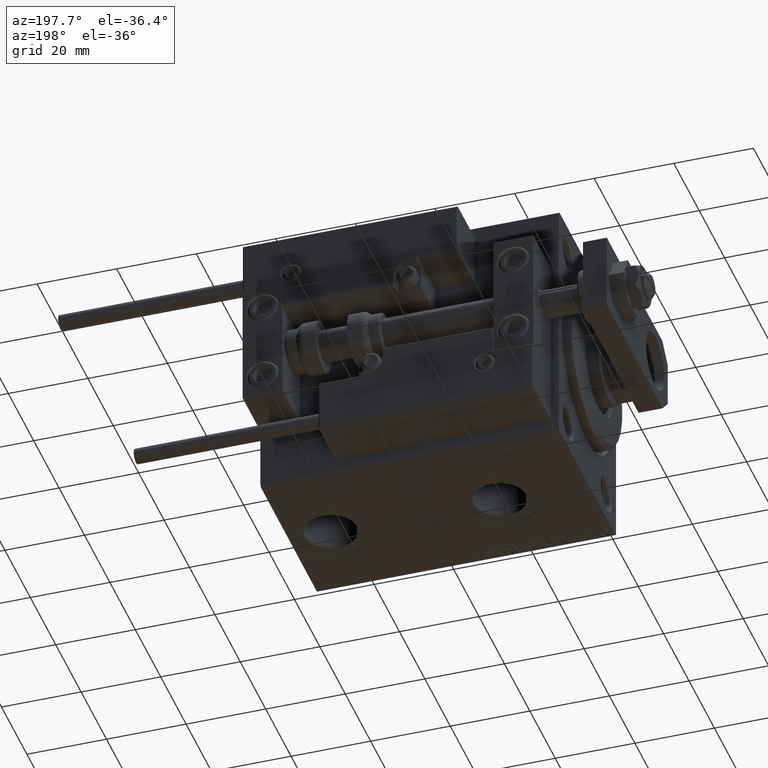
[diagram: clean part render]
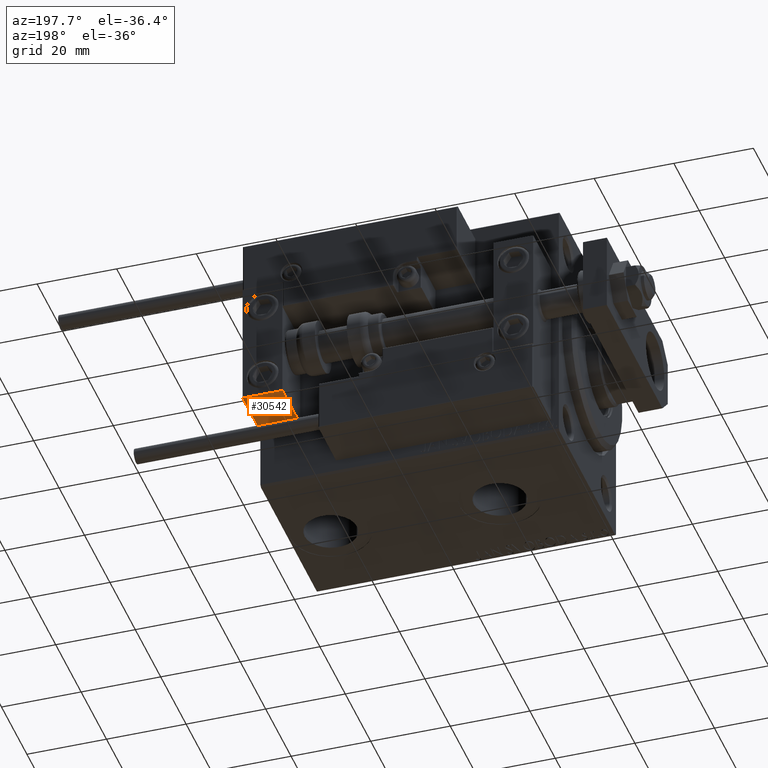
[diagram: same view with one face highlighted and labeled with its STEP entity id]
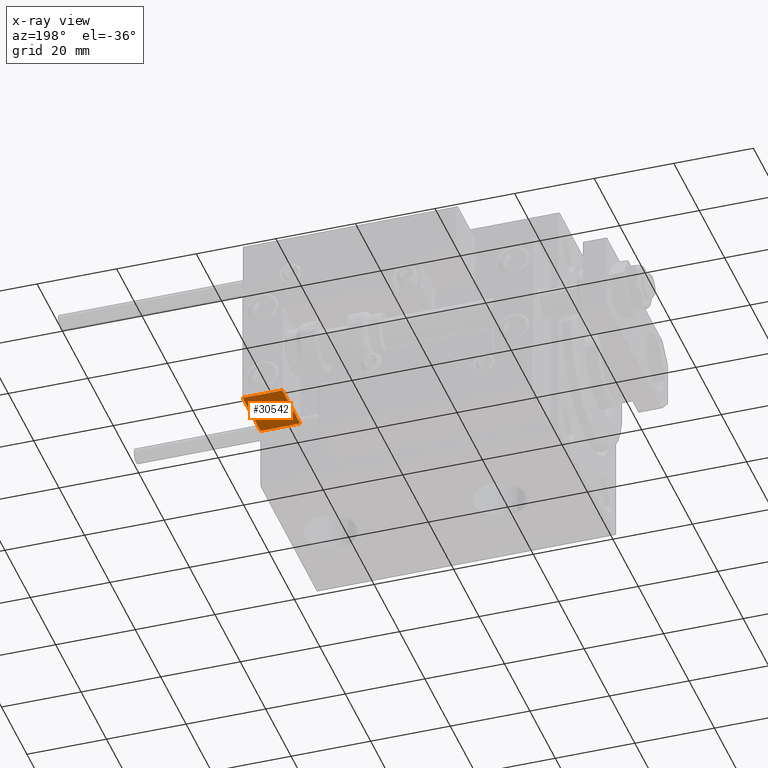
[diagram: x-ray of the same camera — body ghosted, the highlighted face saturated]
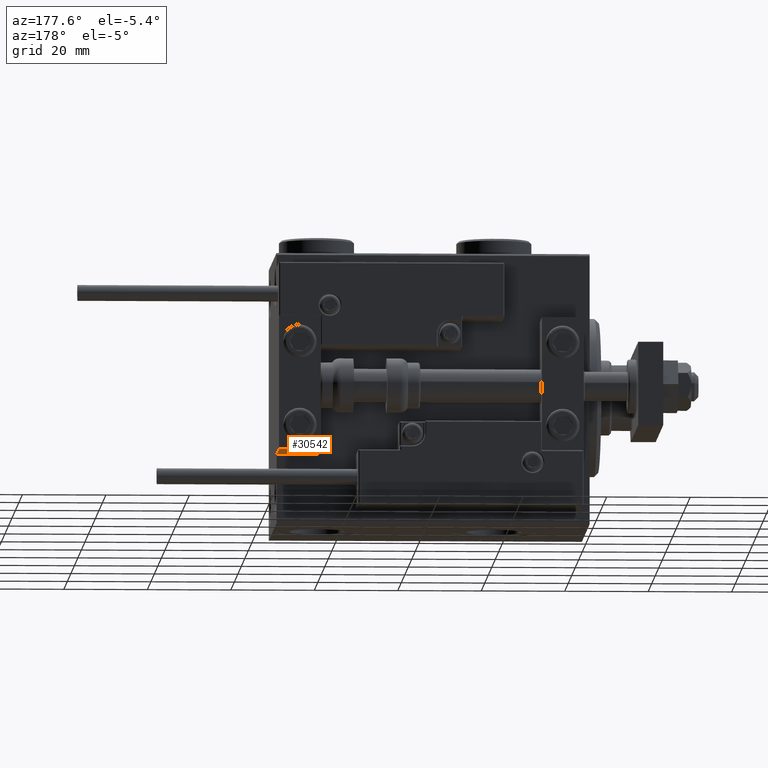
[diagram: same view with one face highlighted and labeled with its STEP entity id]
A machine part, auxiliary view. The second image highlights one B-rep face of the part: STEP entity #30542.
The next image is the same camera in x-ray: the body ghosted, the highlighted face saturated — about 0% of this face is hidden behind the body in this view.
A second angle (auxiliary view) of the same face is appended — the face is thin or edge-on in the first view.
In plain terms, the highlighted planar face has unit normal (0, 0, -1).
Its self-contained STEP definition (entity closure, byte-faithful):
#489 = VECTOR ( 'NONE', #31515, 1000.000000000000000 ) ;
#1492 = DIRECTION ( 'NONE',  ( -1.000000000000000000, -0.000000000000000000, -0.000000000000000000 ) ) ;
#3631 = CARTESIAN_POINT ( 'NONE',  ( 0.000000000000000000, -7.000000000000000000, -16.00000000000000711 ) ) ;
#5211 = CARTESIAN_POINT ( 'NONE',  ( 10.00000000000000000, 7.000000000000000000, -16.00000000000000711 ) ) ;
#9007 = EDGE_CURVE ( 'NONE', #50737, #32722, #34457, .T. ) ;
#10025 = CARTESIAN_POINT ( 'NONE',  ( 10.00000000000000000, 7.000000000000000000, -16.00000000000000711 ) ) ;
#10279 = CARTESIAN_POINT ( 'NONE',  ( 10.00000000000000000, 7.000000000000000000, -16.00000000000000711 ) ) ;
#13226 = DIRECTION ( 'NONE',  ( 0.000000000000000000, -1.000000000000000000, 0.000000000000000000 ) ) ;
#15854 = EDGE_LOOP ( 'NONE', ( #37860, #17782, #29380, #40258 ) ) ;
#17782 = ORIENTED_EDGE ( 'NONE', *, *, #9007, .F. ) ;
#18728 = VECTOR ( 'NONE', #42870, 1000.000000000000000 ) ;
#20568 = CARTESIAN_POINT ( 'NONE',  ( 10.00000000000000000, 7.000000000000000000, -16.00000000000000711 ) ) ;
#22399 = LINE ( 'NONE', #42102, #18728 ) ;
#22784 = DIRECTION ( 'NONE',  ( -1.000000000000000000, 0.000000000000000000, -0.000000000000000000 ) ) ;
#25472 = LINE ( 'NONE', #10025, #43753 ) ;
#29380 = ORIENTED_EDGE ( 'NONE', *, *, #48138, .T. ) ;
#30542 = ADVANCED_FACE ( 'NONE', ( #50702 ), #46707, .T. ) ;
#30583 = VERTEX_POINT ( 'NONE', #3631 ) ;
#31515 = DIRECTION ( 'NONE',  ( -1.000000000000000000, -0.000000000000000000, -0.000000000000000000 ) ) ;
#32411 = CARTESIAN_POINT ( 'NONE',  ( 0.000000000000000000, 7.000000000000000000, -16.00000000000000711 ) ) ;
#32722 = VERTEX_POINT ( 'NONE', #32411 ) ;
#34457 = LINE ( 'NONE', #5211, #37794 ) ;
#37794 = VECTOR ( 'NONE', #1492, 1000.000000000000000 ) ;
#37860 = ORIENTED_EDGE ( 'NONE', *, *, #50858, .F. ) ;
#38754 = DIRECTION ( 'NONE',  ( 0.000000000000000000, 0.000000000000000000, -1.000000000000000000 ) ) ;
#39758 = LINE ( 'NONE', #43741, #489 ) ;
#40258 = ORIENTED_EDGE ( 'NONE', *, *, #49393, .T. ) ;
#42102 = CARTESIAN_POINT ( 'NONE',  ( 0.000000000000000000, 7.000000000000000000, -16.00000000000000711 ) ) ;
#42870 = DIRECTION ( 'NONE',  ( 0.000000000000000000, -1.000000000000000000, 0.000000000000000000 ) ) ;
#43741 = CARTESIAN_POINT ( 'NONE',  ( 10.00000000000000000, -7.000000000000000000, -16.00000000000000711 ) ) ;
#43753 = VECTOR ( 'NONE', #13226, 1000.000000000000000 ) ;
#44372 = VERTEX_POINT ( 'NONE', #47286 ) ;
#46707 = PLANE ( 'NONE',  #50879 ) ;
#47286 = CARTESIAN_POINT ( 'NONE',  ( 10.00000000000000000, -7.000000000000000000, -16.00000000000000711 ) ) ;
#48138 = EDGE_CURVE ( 'NONE', #50737, #44372, #25472, .T. ) ;
#49393 = EDGE_CURVE ( 'NONE', #44372, #30583, #39758, .T. ) ;
#50702 = FACE_OUTER_BOUND ( 'NONE', #15854, .T. ) ;
#50737 = VERTEX_POINT ( 'NONE', #20568 ) ;
#50858 = EDGE_CURVE ( 'NONE', #32722, #30583, #22399, .T. ) ;
#50879 = AXIS2_PLACEMENT_3D ( 'NONE', #10279, #38754, #22784 ) ;